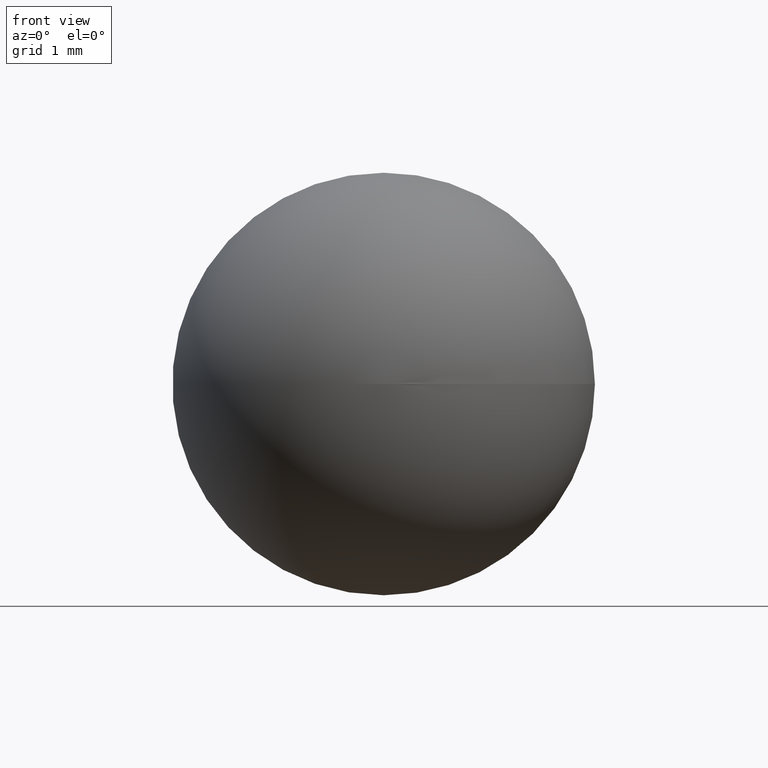
[diagram: clean part render]
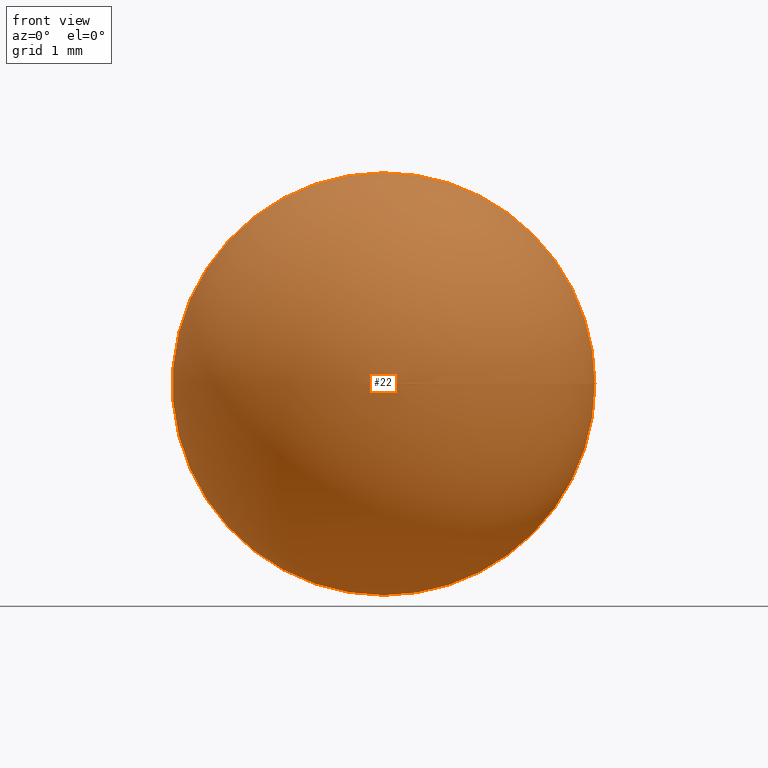
[diagram: same view with one face highlighted and labeled with its STEP entity id]
A machine part, front view. The second image highlights one B-rep face of the part: STEP entity #22.
In plain terms, the highlighted spherical surface has radius 2 mm.
Its self-contained STEP definition (entity closure, byte-faithful):
#5 = EDGE_CURVE ( 'NONE', #186, #62, #94, .T. ) ;
#9 = DIRECTION ( 'NONE',  ( 0.0000000000000000000, 0.0000000000000000000, 1.000000000000000000 ) ) ;
#22 = ADVANCED_FACE ( 'NONE', ( #26 ), #67, .T. ) ;
#23 = CARTESIAN_POINT ( 'NONE',  ( 0.0000000000000000000, 0.0000000000000000000, 0.0000000000000000000 ) ) ;
#26 = FACE_OUTER_BOUND ( 'NONE', #130, .T. ) ;
#39 = CARTESIAN_POINT ( 'NONE',  ( 0.0000000000000000000, 0.0000000000000000000, 0.0000000000000000000 ) ) ;
#57 = ORIENTED_EDGE ( 'NONE', *, *, #70, .F. ) ;
#62 = VERTEX_POINT ( 'NONE', #87 ) ;
#67 = SPHERICAL_SURFACE ( 'NONE', #110, 2.000000000000000000 ) ;
#70 = EDGE_CURVE ( 'NONE', #186, #62, #83, .T. ) ;
#83 = CIRCLE ( 'NONE', #99, 2.000000000000000000 ) ;
#87 = CARTESIAN_POINT ( 'NONE',  ( 1.224646799147353200E-016, 0.0000000000000000000, -2.000000000000000000 ) ) ;
#94 = CIRCLE ( 'NONE', #135, 2.000000000000000000 ) ;
#99 = AXIS2_PLACEMENT_3D ( 'NONE', #122, #155, #9 ) ;
#109 = CARTESIAN_POINT ( 'NONE',  ( 1.224646799147353200E-016, 0.0000000000000000000, 2.000000000000000000 ) ) ;
#110 = AXIS2_PLACEMENT_3D ( 'NONE', #23, #154, #179 ) ;
#122 = CARTESIAN_POINT ( 'NONE',  ( 0.0000000000000000000, 0.0000000000000000000, 0.0000000000000000000 ) ) ;
#130 = EDGE_LOOP ( 'NONE', ( #57, #167 ) ) ;
#135 = AXIS2_PLACEMENT_3D ( 'NONE', #39, #140, #178 ) ;
#140 = DIRECTION ( 'NONE',  ( 1.224646799147353200E-016, -1.000000000000000000, 0.0000000000000000000 ) ) ;
#154 = DIRECTION ( 'NONE',  ( 0.0000000000000000000, -1.000000000000000000, -0.0000000000000000000 ) ) ;
#155 = DIRECTION ( 'NONE',  ( 0.0000000000000000000, 1.000000000000000000, -0.0000000000000000000 ) ) ;
#167 = ORIENTED_EDGE ( 'NONE', *, *, #5, .T. ) ;
#178 = DIRECTION ( 'NONE',  ( 1.000000000000000000, 1.224646799147353200E-016, 0.0000000000000000000 ) ) ;
#179 = DIRECTION ( 'NONE',  ( 1.000000000000000000, 0.0000000000000000000, 0.0000000000000000000 ) ) ;
#186 = VERTEX_POINT ( 'NONE', #109 ) ;